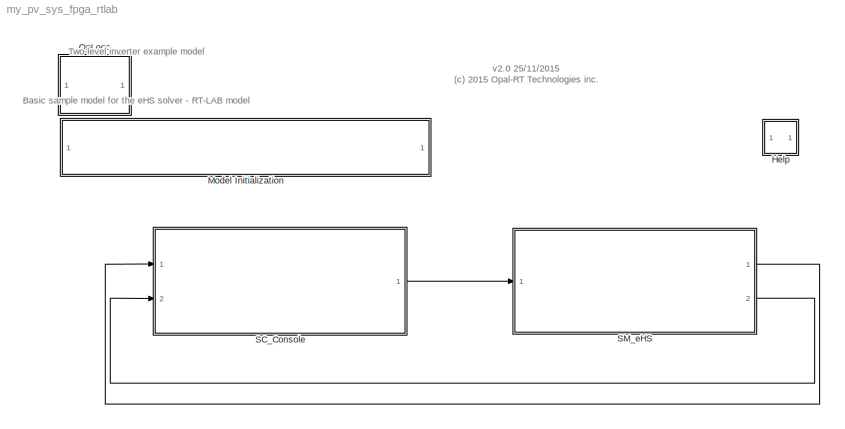
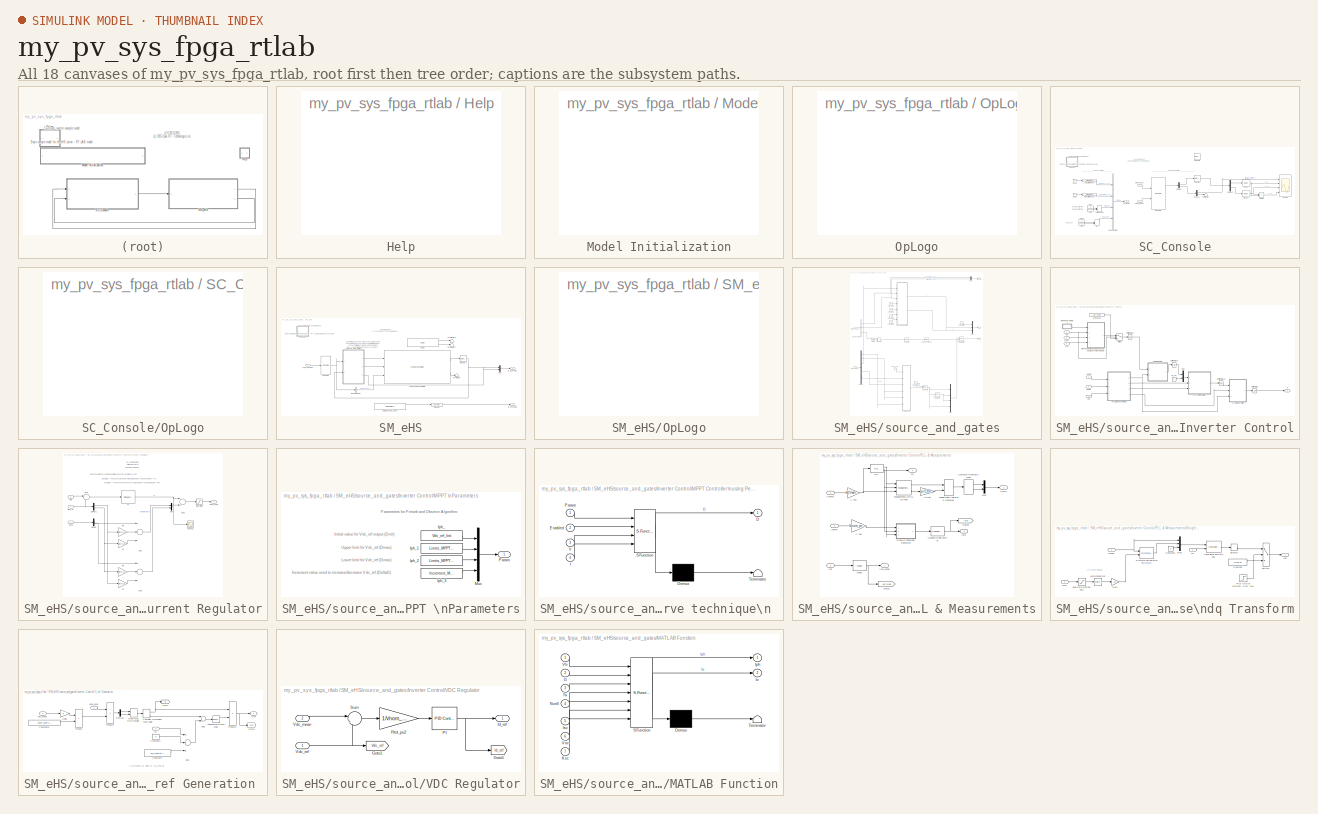
[diagram: thumbnail index - all 18 canvases of the model, root first then tree order]
MODEL my_pv_sys_fpga_rtlab
KIND model
CONFIG InitFcn = Ts = 20e-6;
CONFIG PostLoadFcn = Ts = 20e-6;
BLOCK [SubSystem] Help
  OpenFcn = OpHelp_cb(gcb);
  Ports = []
  RequestExecContextInheritance = off
  SID = 4176
BLOCK [SubSystem] Model Initialization
  CopyFcn = set_param(gcb,'LinkStatus','none')
  Ports = []
  RequestExecContextInheritance = off
  SID = 3978
BLOCK [SubSystem] OpLogo
  Ports = []
  RequestExecContextInheritance = off
  SID = 4164
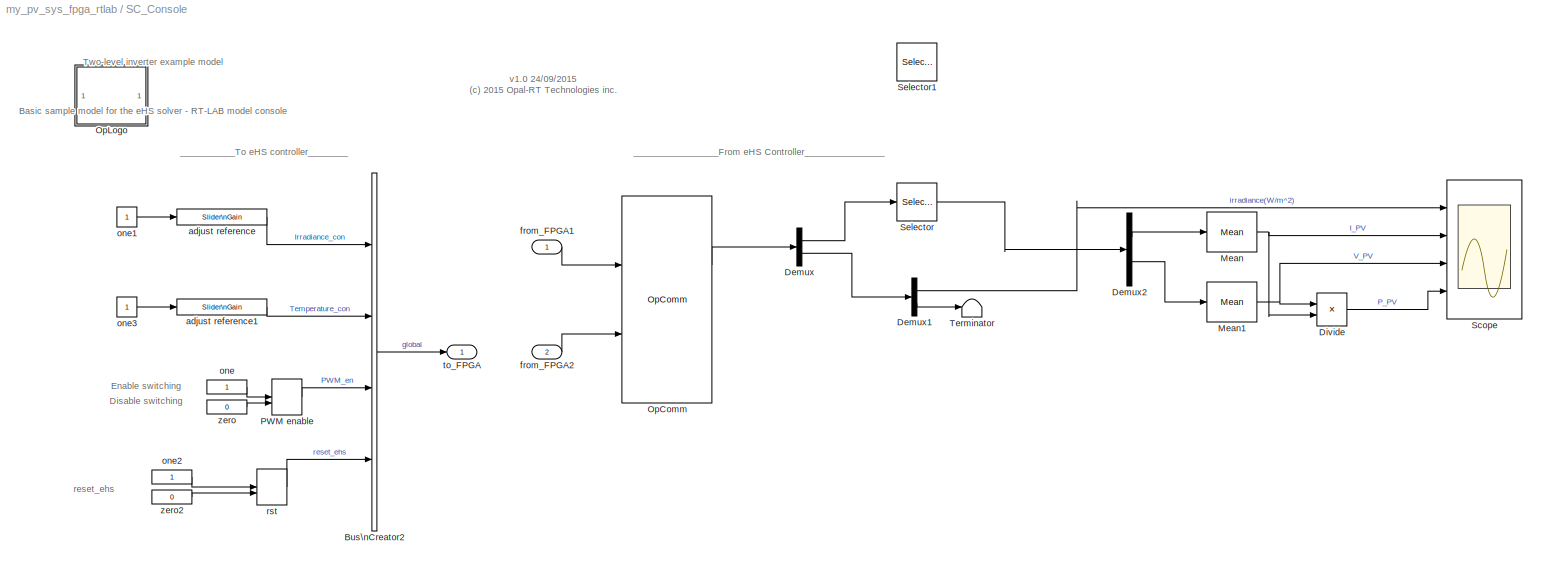
BLOCK [SubSystem] SC_Console
  Ports = [2, 1]
  RequestExecContextInheritance = off
  SID = 5
BLOCK [BusCreator] SC_Console/Bus\nCreator2
  DisplayOption = bar
  Ports = [4, 1]
  SID = 2618
BLOCK [Demux] SC_Console/Demux
  DisplayOption = bar
  Outputs = 2
  Ports = [1, 2]
  SID = 5000
BLOCK [Demux] SC_Console/Demux1
  DisplayOption = bar
  Outputs = 2
  Ports = [1, 2]
  SID = 5001
BLOCK [Demux] SC_Console/Demux2
  DisplayOption = bar
  Outputs = 2
  Ports = [1, 2]
  SID = 5005
BLOCK [Product] SC_Console/Divide
  InputSameDT = off
  Inputs = **
  OutDataTypeStr = Inherit: Inherit via internal rule
  Ports = [2, 1]
  RndMeth = Floor
  SID = 5010
  SaturateOnIntegerOverflow = off
BLOCK [Reference] SC_Console/Mean  REF=powerlib_meascontrol/Measurements/Mean
  Freq = 50
  Ports = [1, 1]
  SID = 5007
  SourceBlock = powerlib_meascontrol/Measurements/Mean
  SourceType = Mean
  Ts = 0
  Vinit = 0
BLOCK [Reference] SC_Console/Mean1  REF=powerlib_meascontrol/Measurements/Mean
  Freq = 50
  Ports = [1, 1]
  SID = 5008
  SourceBlock = powerlib_meascontrol/Measurements/Mean
  SourceType = Mean
  Ts = 0
  Vinit = 0
BLOCK [Reference] SC_Console/OpComm  REF=rtlab/OpComm
  Interpolation = on
  Missed_Data = off
  Offset = off
  Ports = [2, 2]
  SID = 1494
  Samples = off
  Sim_Time = off
  SourceBlock = rtlab/OpComm
  SourceType = RT-LAB OpComm
  Synchronization = off
  Threshold = 1.0
  dynSigOut = off
  from_console = 0
  groupe_acq = 1
  nbport = 2
  st = 0
  subsys_rate = 0
  warning_done = off
  writeOpCommFile = off
BLOCK [SubSystem] SC_Console/OpLogo
  Ports = []
  RequestExecContextInheritance = off
  SID = 4165
BLOCK [ManualSwitch] SC_Console/PWM enable
  SID = 3880
BLOCK [Scope] SC_Console/Scope
  Floating = off
  NumInputPorts = 4
  Ports = [4]
  SID = 5002
  SaveName = ScopeData1
  ShowLegends = off
  YMax = 5~5~5~5
  YMin = -5~-5~-5~-5
BLOCK [Selector] SC_Console/Selector
  Indices = [1 2]
  Ports = [1, 1]
  SID = 3843
BLOCK [Selector] SC_Console/Selector1
  Indices = [1 2]
  Ports = [1, 1]
  SID = 5011
BLOCK [Terminator] SC_Console/Terminator
  SID = 5003
BLOCK [Reference] SC_Console/adjust reference  REF=simulink/Math\nOperations/Slider\nGain
  Ports = [1, 1]
  SID = 4586
  SourceBlock = simulink/Math\nOperations/Slider\nGain
  SourceType = Slider Gain
  gain = 1000
  high = 1000
  low = 0
BLOCK [Reference] SC_Console/adjust reference1  REF=simulink/Math\nOperations/Slider\nGain
  Ports = [1, 1]
  SID = 4587
  SourceBlock = simulink/Math\nOperations/Slider\nGain
  SourceType = Slider Gain
  gain = 25
  high = 60
  low = 0
BLOCK [Inport] SC_Console/from_FPGA1
  IconDisplay = Port number
  SID = 4332
BLOCK [Inport] SC_Console/from_FPGA2
  IconDisplay = Port number
  Port = 2
  SID = 4339
BLOCK [Constant] SC_Console/one
  SID = 3882
BLOCK [Constant] SC_Console/one1
  SID = 4588
BLOCK [Constant] SC_Console/one2
  SID = 4280
BLOCK [Constant] SC_Console/one3
  SID = 4589
BLOCK [ManualSwitch] SC_Console/rst
  CurrentSetting = 0
  SID = 4279
BLOCK [Outport] SC_Console/to_FPGA
  IconDisplay = Port number
  SID = 59
BLOCK [Constant] SC_Console/zero
  SID = 3881
  Value = 0
BLOCK [Constant] SC_Console/zero2
  SID = 4281
  Value = 0
BLOCK [SubSystem] SM_eHS
  Ports = [1, 2]
  RequestExecContextInheritance = off
  SID = 60
BLOCK [BusSelector] SM_eHS/Bus\nSelector
  OutputSignals = reset_ehs
  Ports = [1, 1]
  SID = 4262
BLOCK [Mux] SM_eHS/Mux
  DisplayOption = bar
  Inputs = 2
  Ports = [2, 1]
  SID = 4998
BLOCK [Reference] SM_eHS/OpComm  REF=rtlab/OpComm
  Interpolation = on
  Missed_Data = off
  Offset = off
  Ports = [1, 1]
  SID = 1495
  Samples = off
  Sim_Time = off
  SourceBlock = rtlab/OpComm
  SourceType = RT-LAB OpComm
  Synchronization = on
  Threshold = 1.0
  dynSigOut = off
  from_console = 1
  groupe_acq = 1
  nbport = 1
  st = 0
  subsys_rate = 0
  warning_done = off
  writeOpCommFile = off
BLOCK [Reference] SM_eHS/OpCtrl  REF=rtio_opalrt_common/OpCtrl
  BitstreamFilename = MMPK7_1-EX-0001-2_3_2_19-300Series_eHSgen3_with_IOs-303-03.bin
  BoardType = MMPK7
  CtrlName = 'eHS Ctrl'
  Ports = [0, 2]
  SID = 4344
  SampleTime = 0
  SecondaryPresent = off
  SourceBlock = rtio_opalrt_common/OpCtrl
  SourceType = OpCtrlCommonMask
  boardid = 0
  calibIO = off
  decimRtsi = 0
  externalClock = off
  loadinport = -1
  mode = Master
  numconfig = -1
  sync_type = Audio
BLOCK [SubSystem] SM_eHS/OpLogo
  Ports = []
  RequestExecContextInheritance = off
  SID = 4166
BLOCK [Reference] SM_eHS/Outputs_eHS1_Recv  REF=rtio_opalrt_common/DataOut Recv
  AttributesFormatString = %<CtrlName>
  CtrlName = 'eHS Ctrl'
  FcnNos = 2
  Ports = [0, 2]
  SID = 4562
  SourceBlock = rtio_opalrt_common/DataOut Recv
  SourceType = OpFcnCommonRecv
  checkVersion = off
  expectedId = 0
  expectedVersion = 0
  opComp = >=
  portType = uint32
  sampleTime = 0
  width = 7
BLOCK [Selector] SM_eHS/Selector1
  Indices = [1:7]
  Ports = [1, 1]
  SID = 4330
BLOCK [Terminator] SM_eHS/Terminator
  SID = 4560
BLOCK [Terminator] SM_eHS/Terminator3
  SID = 3967
BLOCK [Terminator] SM_eHS/Terminator7
  SID = 3968
BLOCK [Reference] SM_eHS/eHSx64 Gen3 CommBlk  REF=cpuconverter_lib/eHS Gen3 CommBlk
  AttributesFormatString = %<CtrlName>
  CtrlName = 'eHS Ctrl'
  GateCtrlSelPanel = off
  GenMat = off
  Input_config1_popup = Constant from RT-LAB block (all)
  Polarity1 = zeros(1,72)
  Polarity1_popup = Active-high (all)
  PortNbs = [1 2 1 2:1:2+8 1]
  Ports = [3, 2]
  Pulse_ctrl1 = [zeros(72,1) (0:71)']
  Pulse_ctrl1_popup = From RT-LAB block (all)
  SID = 4559
  SWGPortNbs = 3
  ShowAdv1 = on
  SimeHS1 = off
  SourceBlock = cpuconverter_lib/eHS Gen3 CommBlk
  SourceType = eHS Gen3 solver
  Ts = Ts
  Ts_eHS_1 = 2.5e-07
  Ts_eHS_1_explicit = on
  UseSWG = off
  blkid1 = 0
  circuit_mtx1 = my_pv_sys_fpga
  gs1 = 0.5
  i_init1 = zeros(1,4)
  input_config_1 = [zeros(32,1)  (0:31)']
  input_names = U01\n14,400 V | U02 IPH\n | U03 ID
  input_nb = 3
  input_nb_auto = on
  nb_event = 4
  nb_nsd = 12
  nb_sw = 4
  nb_u = 3
  nb_y = 7
  netlist_name = my_pv_sys_fpga.mdl
  nscn_max = 102
  nscn_used = 1
  output_names = Y01 IPANEL I | Y02 VPANEL U | Y03 VPH U | Y04 VINV U | Y05 IGRID I | Y06 VGRID U | Y07 IG I
  pulse_nb = 8
  rte_pulse_nb = SW01-08
  scn_cmd = do nothing
  scn_en = off
  scn_log_en = on
  solver_size = x64
  static_pulse = none
  switches_names = SW01-04_01 | SW01-04_02 | SW01-04_03 | SW01-04_04
  ts_min = 2.05e-07
  v_init1 = zeros(1,4)
  xls_file = diode_bridge.xls
  xls_page = 1
BLOCK [Inport] SM_eHS/from_Console
  IconDisplay = Port number
  SID = 61
BLOCK [Reference] SM_eHS/sfp2dbl  REF=rtlab/Miscellaneous/Convert \nSingle floating-point (FPGA) \nto double
  Ports = [1, 1]
  SID = 4563
  SourceBlock = rtlab/Miscellaneous/Convert \nSingle floating-point (FPGA) \nto double
  SourceType = Convert Single floating-point (FPGA) to double
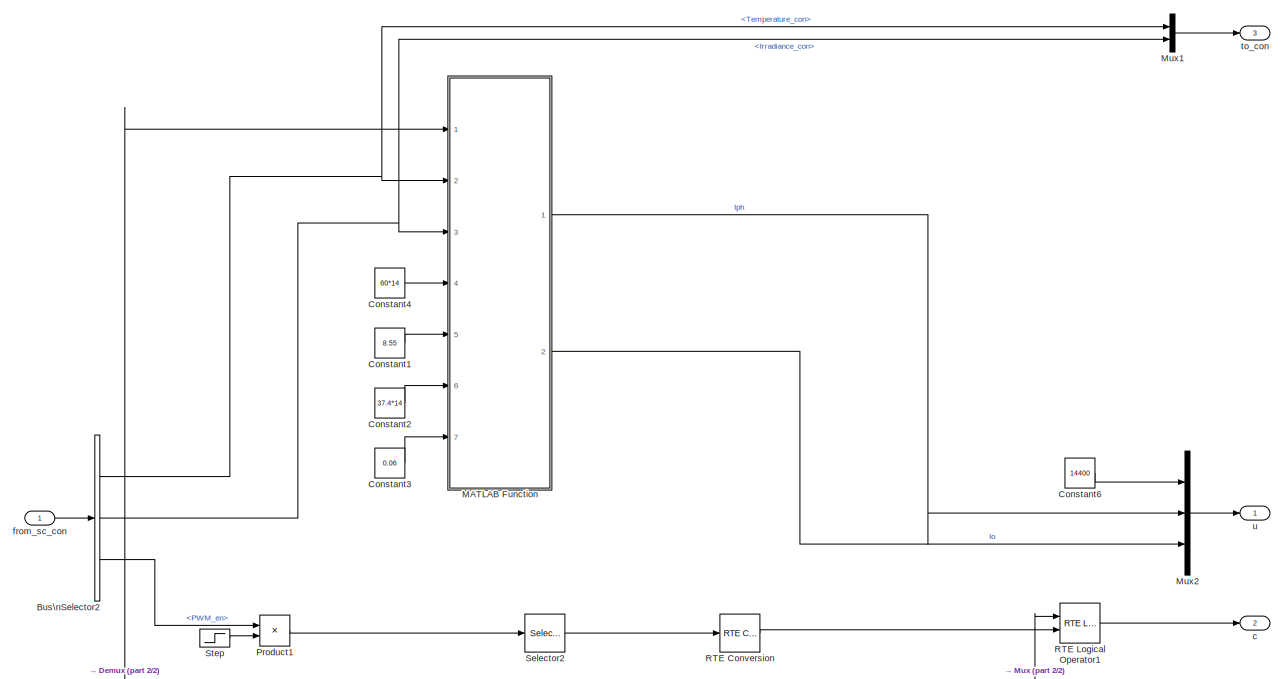
[diagram: SM_eHS/source_and_gates - part 1/2, full width, top band]
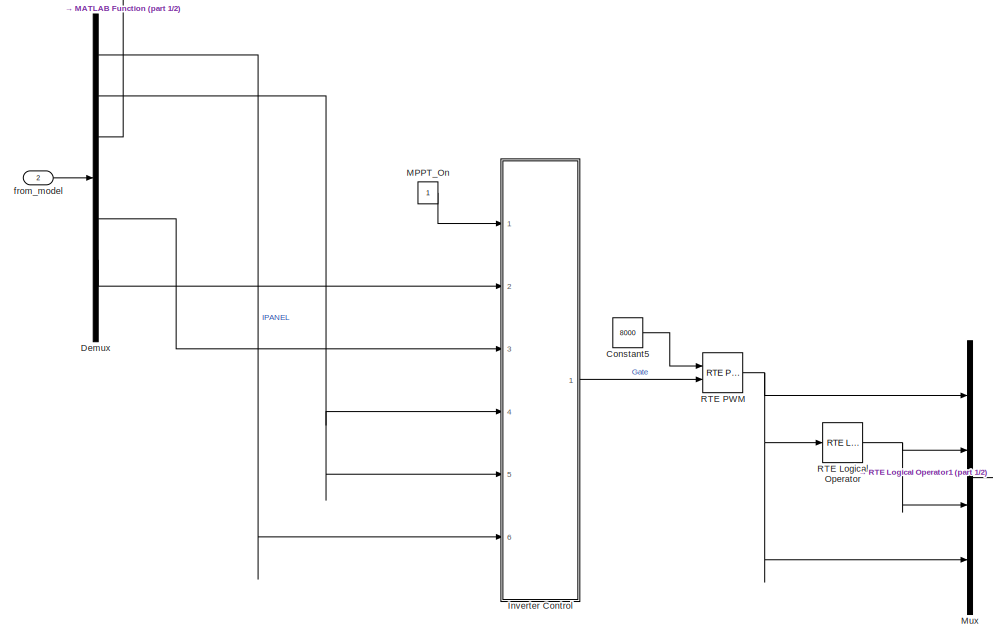
[diagram: SM_eHS/source_and_gates - part 2/2, full width, bottom band]
BLOCK [SubSystem] SM_eHS/source_and_gates
  Ports = [2, 3]
  RequestExecContextInheritance = off
  SID = 4227
BLOCK [BusSelector] SM_eHS/source_and_gates/Bus\nSelector2
  OutputSignals = Temperature_con,Irradiance_con,PWM_en
  Ports = [1, 3]
  SID = 2626
BLOCK [Constant] SM_eHS/source_and_gates/Constant1
  SID = 4722
  Value = 8.55
BLOCK [Constant] SM_eHS/source_and_gates/Constant2
  SID = 4723
  Value = 37.4*14
BLOCK [Constant] SM_eHS/source_and_gates/Constant3
  SID = 4724
  Value = 0.06
BLOCK [Constant] SM_eHS/source_and_gates/Constant4
  SID = 4725
  Value = 60*14
BLOCK [Constant] SM_eHS/source_and_gates/Constant5
  SID = 4991
  Value = 8000
BLOCK [Constant] SM_eHS/source_and_gates/Constant6
  SID = 4995
  Value = 14400
BLOCK [Demux] SM_eHS/source_and_gates/Demux
  DisplayOption = bar
  Outputs = 7
  Ports = [1, 7]
  SID = 4989
BLOCK [SubSystem] SM_eHS/source_and_gates/Inverter Control
  Ports = [6, 1]
  RequestExecContextInheritance = off
  SID = 4726
BLOCK [SubSystem] SM_eHS/source_and_gates/Inverter Control/Current Regulator
  Ports = [3, 1]
  RequestExecContextInheritance = off
  SID = 4733
BLOCK [Sum] SM_eHS/source_and_gates/Inverter Control/Current Regulator/Add1
  InputSameDT = off
  Inputs = ++-
  OutDataTypeStr = Inherit: Inherit via internal rule
  Ports = [3, 1]
  SID = 4737
  SaturateOnIntegerOverflow = off
BLOCK [Sum] SM_eHS/source_and_gates/Inverter Control/Current Regulator/Add2
  InputSameDT = off
  OutDataTypeStr = Inherit: Inherit via internal rule
  Ports = [2, 1]
  SID = 4738
  SaturateOnIntegerOverflow = off
BLOCK [Sum] SM_eHS/source_and_gates/Inverter Control/Current Regulator/Add3
  InputSameDT = off
  Inputs = +++
  OutDataTypeStr = Inherit: Inherit via internal rule
  Ports = [3, 1]
  SID = 4739
  SaturateOnIntegerOverflow = off
BLOCK [Demux] SM_eHS/source_and_gates/Inverter Control/Current Regulator/Demux
  DisplayOption = bar
  Outputs = 2
  Ports = [1, 2]
  SID = 4740
BLOCK [Demux] SM_eHS/source_and_gates/Inverter Control/Current Regulator/Demux1
  DisplayOption = bar
  Outputs = 2
  Ports = [1, 2]
  SID = 4741
BLOCK [Inport] SM_eHS/source_and_gates/Inverter Control/Current Regulator/IdIq
  IconDisplay = Port number
  Port = 3
  PortDimensions = 2
  SID = 4736
BLOCK [Inport] SM_eHS/source_and_gates/Inverter Control/Current Regulator/IdIq_ref
  IconDisplay = Port number
  PortDimensions = 2
  SID = 4734
BLOCK [Gain] SM_eHS/source_and_gates/Inverter Control/Current Regulator/Lff
  Gain = RLff(2)
  SID = 4742
BLOCK [Gain] SM_eHS/source_and_gates/Inverter Control/Current Regulator/Lff  
  Gain = RLff(2)
  SID = 4743
BLOCK [Mux] SM_eHS/source_and_gates/Inverter Control/Current Regulator/Mux
  DisplayOption = bar
  Inputs = 2
  Ports = [2, 1]
  SID = 4744
BLOCK [Reference] SM_eHS/source_and_gates/Inverter Control/Current Regulator/PI  REF=simulink/Continuous/PID Controller
  AntiWindupMode = none
  Controller = PI
  D = 0
  DOutDataTypeStr = Inherit: Inherit via internal rule
  DOutMax = []
  DOutMin = []
  DParamDataTypeStr = Inherit: Inherit via internal rule
  DParamMax = []
  DParamMin = []
  DifferentiatorICPrevScaledInput = 0
  DifferentiatorOutDataTypeStr = Inherit: Inherit via internal rule
  DifferentiatorOutMax = []
  DifferentiatorOutMin = []
  ExternalReset = none
  FilterContinuousStateAttributes = ''
  FilterMethod = Forward Euler
  FilterOutDataTypeStr = Inherit: Inherit via internal rule
  FilterOutMax = []
  FilterOutMin = []
  FilterRTWStateStorageClass = Auto
  FilterStateMustResolveToSignalObject = off
  Form = Parallel
  I = Ki_Ireg
  IOutDataTypeStr = Inherit: Inherit via internal rule
  IOutMax = []
  IOutMin = []
  IParamDataTypeStr = Inherit: Inherit via internal rule
  IParamMax = []
  IParamMin = []
  IgnoreLimit = off
  InitialConditionForFilter = 0
  InitialConditionForIntegrator = 0
  InitialConditionSource = internal
  IntegratorContinuousStateAttributes = ''
  IntegratorMethod = Forward Euler
  IntegratorOutDataTypeStr = Inherit: Inherit via internal rule
  IntegratorOutMax = []
  IntegratorOutMin = []
  IntegratorRTWStateStorageClass = Auto
  IntegratorStateMustResolveToSignalObject = off
  Kb = 1
  KbOutDataTypeStr = Inherit: Inherit via internal rule
  KbOutMax = []
  KbOutMin = []
  KbParamDataTypeStr = Inherit: Inherit via internal rule
  KbParamMax = []
  KbParamMin = []
  Kt = 1
  KtOutDataTypeStr = Inherit: Inherit via internal rule
  KtOutMax = []
  KtOutMin = []
  KtParamDataTypeStr = Inherit: Inherit via internal rule
  KtParamMax = []
  KtParamMin = []
  LimitOutput = on
  LinearizeAsGain = off
  LockScale = off
  LowerSaturationLimit = -1.5
  N = 100
  NOutDataTypeStr = Inherit: Inherit via internal rule
  NOutMax = []
  NOutMin = []
  NParamDataTypeStr = Inherit: Inherit via internal rule
  NParamMax = []
  NParamMin = []
  P = Kp_Ireg
  POutDataTypeStr = Inherit: Inherit via internal rule
  POutMax = []
  POutMin = []
  PParamDataTypeStr = Inherit: Inherit via internal rule
  PParamMax = []
  PParamMin = []
  Ports = [1, 1]
  RndMeth = Floor
  SID = 4745
  SampleTime = Ts_Control
  SaturateOnIntegerOverflow = off
  SaturationOutDataTypeStr = Inherit: Same as input
  SaturationOutMax = []
  SaturationOutMin = []
  SourceBlock = simulink/Continuous/PID Controller
  SourceType = PID 1dof
  SumAccumDataTypeStr = Inherit: Inherit via internal rule
  SumDAccumDataTypeStr = Inherit: Inherit via internal rule
  SumDOutDataTypeStr = Inherit: Inherit via internal rule
  SumDOutMax = []
  SumDOutMin = []
  SumI1AccumDataTypeStr = Inherit: Inherit via internal rule
  SumI1OutDataTypeStr = Inherit: Inherit via internal rule
  SumI1OutMax = []
  SumI1OutMin = []
  SumI2AccumDataTypeStr = Inherit: Inherit via internal rule
  SumI2OutDataTypeStr = Inherit: Inherit via internal rule
  SumI2OutMax = []
  SumI2OutMin = []
  SumI3AccumDataTypeStr = Inherit: Inherit via internal rule
  SumI3OutDataTypeStr = Inherit: Inherit via internal rule
  SumI3OutMax = []
  SumI3OutMin = []
  SumOutDataTypeStr = Inherit: Inherit via internal rule
  SumOutMax = []
  SumOutMin = []
  TimeDomain = Discrete-time
  TrackingMode = off
  UpperSaturationLimit = 1.5
  UseFilter = on
  ZeroCross = on
BLOCK [Scope] SM_eHS/source_and_gates/Inverter Control/Current Regulator/PI_Ireg1
  Floating = off
  LimitDataPoints = off
  NumInputPorts = 1
  Ports = [1]
  SID = 4746
  ShowLegends = off
  YMax = 0.45
  YMin = -0.25
BLOCK [Gain] SM_eHS/source_and_gates/Inverter Control/Current Regulator/Rff
  Gain = RLff(1)
  SID = 4747
BLOCK [Gain] SM_eHS/source_and_gates/Inverter Control/Current Regulator/Rff 
  Gain = RLff(1)
  SID = 4748
BLOCK [Saturate] SM_eHS/source_and_gates/Inverter Control/Current Regulator/Saturation
  InputPortMap = u0
  LowerLimit = -1.5
  Ports = [1, 1]
  SID = 4749
  UpperLimit = 1.5
BLOCK [Sum] SM_eHS/source_and_gates/Inverter Control/Current Regulator/Sum
  IconShape = round
  InputSameDT = off
  Inputs = |-+
  OutDataTypeStr = Inherit: Inherit via internal rule
  Ports = [2, 1]
  SID = 4750
  SaturateOnIntegerOverflow = off
BLOCK [Inport] SM_eHS/source_and_gates/Inverter Control/Current Regulator/VdVq
  IconDisplay = Port number
  Port = 2
  PortDimensions = 2
  SID = 4735
BLOCK [Outport] SM_eHS/source_and_gates/Inverter Control/Current Regulator/VdVq_conv
  IconDisplay = Port number
  SID = 4751
BLOCK [Inport] SM_eHS/source_and_gates/Inverter Control/I_PV
  IconDisplay = Port number
  Port = 6
  PortDimensions = 1
  SID = 4732
BLOCK [Inport] SM_eHS/source_and_gates/Inverter Control/Ihome
  IconDisplay = Port number
  Port = 3
  PortDimensions = 1
  SID = 4729
BLOCK [Constant] SM_eHS/source_and_gates/Inverter Control/Iq_ref
  SID = 4757
  Value = 0
BLOCK [SubSystem] SM_eHS/source_and_gates/Inverter Control/MPPT Controller\nusing Perturbe \n& Observe technique\n 
  ErrorFcn = Stateflow.Translate.translate
  PermitHierarchicalResolution = ExplicitOnly
  Ports = [4, 1]
  RequestExecContextInheritance = off
  SFBlockType = MATLAB Function
  SID = 4770
  TreatAsAtomicUnit = on
BLOCK [Demux] SM_eHS/source_and_gates/Inverter Control/MPPT Controller\nusing Perturbe \n& Observe technique\n / Demux 
  Outputs = 1
  Ports = [1, 1]
  SID = 4770::127
BLOCK [S-Function] SM_eHS/source_and_gates/Inverter Control/MPPT Controller\nusing Perturbe \n& Observe technique\n / SFunction 
  EnableBusSupport = on
  FunctionName = sf_sfun
  PortCounts = [4 2]
  Ports = [4, 2]
  SID = 4770::126
  Tag = Stateflow S-Function my_pv_sys_fpga_rtlab 2
BLOCK [Terminator] SM_eHS/source_and_gates/Inverter Control/MPPT Controller\nusing Perturbe \n& Observe technique\n / Terminator 
  SID = 4770::128
BLOCK [Outport] SM_eHS/source_and_gates/Inverter Control/MPPT Controller\nusing Perturbe \n& Observe technique\n /D
  IconDisplay = Port number
  SID = 4770::35
BLOCK [Inport] SM_eHS/source_and_gates/Inverter Control/MPPT Controller\nusing Perturbe \n& Observe technique\n /Enabled
  IconDisplay = Port number
  Port = 2
  SID = 4770::91
BLOCK [Inport] SM_eHS/source_and_gates/Inverter Control/MPPT Controller\nusing Perturbe \n& Observe technique\n /I
  IconDisplay = Port number
  Port = 4
  SID = 4770::1
BLOCK [Inport] SM_eHS/source_and_gates/Inverter Control/MPPT Controller\nusing Perturbe \n& Observe technique\n /Param
  IconDisplay = Port number
  SID = 4770::90
BLOCK [Inport] SM_eHS/source_and_gates/Inverter Control/MPPT Controller\nusing Perturbe \n& Observe technique\n /V
  IconDisplay = Port number
  Port = 3
  SID = 4770::85
BLOCK [SubSystem] SM_eHS/source_and_gates/Inverter Control/MPPT \nParameters
  Ports = [0, 1]
  RequestExecContextInheritance = off
  SID = 4758
BLOCK [Constant] SM_eHS/source_and_gates/Inverter Control/MPPT \nParameters/Iph_
  SID = 4759
  Value = Vdc_ref_Init
BLOCK [Constant] SM_eHS/source_and_gates/Inverter Control/MPPT \nParameters/Iph_1
  SID = 4760
  Value = Limits_MPPT(1)
BLOCK [Constant] SM_eHS/source_and_gates/Inverter Control/MPPT \nParameters/Iph_2
  SID = 4761
  Value = Limits_MPPT(2)
BLOCK [Constant] SM_eHS/source_and_gates/Inverter Control/MPPT \nParameters/Iph_3
  SID = 4762
  Value = Increment_MPPT
BLOCK [Mux] SM_eHS/source_and_gates/Inverter Control/MPPT \nParameters/Mux
  DisplayOption = bar
  Ports = [4, 1]
  SID = 4763
BLOCK [Outport] SM_eHS/source_and_gates/Inverter Control/MPPT \nParameters/Param
  IconDisplay = Port number
  SID = 4764
BLOCK [Mux] SM_eHS/source_and_gates/Inverter Control/Mux
  DisplayOption = bar
  Inputs = 2
  Ports = [2, 1]
  SID = 4771
BLOCK [Inport] SM_eHS/source_and_gates/Inverter Control/On
  IconDisplay = Port number
  PortDimensions = 1
  SID = 4727
BLOCK [SubSystem] SM_eHS/source_and_gates/Inverter Control/PLL & Measurements
  Ports = [3, 4]
  RequestExecContextInheritance = off
  SID = 4772
BLOCK [Gain] SM_eHS/source_and_gates/Inverter Control/PLL & Measurements/A->pu
  Gain = Vnom_prim/Pnom/sqrt(2)
  SID = 4776
BLOCK [ComplexToRealImag] SM_eHS/source_and_gates/Inverter Control/PLL & Measurements/Complex to\nReal-Imag
  Ports = [1, 2]
  SID = 4777
BLOCK [Reference] SM_eHS/source_and_gates/Inverter Control/PLL & Measurements/Fundamental\n(PLL-Driven)  REF=powerlib_meascontrol/Measurements/Fundamental\n(PLL-Driven)
  Finit = Fnom
  Fmin = 45
  InInit = [1, 0]
  Ports = [3, 2]
  SID = 4778
  SourceBlock = powerlib_meascontrol/Measurements/Fundamental\n(PLL-Driven)
  SourceType = Fundamental (PLL-Driven)
  Ts = Ts_Control
BLOCK [Goto] SM_eHS/source_and_gates/Inverter Control/PLL & Measurements/Goto1
  GotoTag = Vdc_mean
  SID = 4779
  TagVisibility = global
BLOCK [Goto] SM_eHS/source_and_gates/Inverter Control/PLL & Measurements/Goto3
  GotoTag = IdIq
  SID = 4780
  TagVisibility = global
BLOCK [Outport] SM_eHS/source_and_gates/Inverter Control/PLL & Measurements/IdIq
  IconDisplay = Port number
  Port = 3
  SID = 4807
BLOCK [Inport] SM_eHS/source_and_gates/Inverter Control/PLL & Measurements/Ihome
  IconDisplay = Port number
  Port = 2
  SID = 4774
BLOCK [MagnitudeAngleToComplex] SM_eHS/source_and_gates/Inverter Control/PLL & Measurements/Magnitude-Angle\nto Complex
  Ports = [2, 1]
  SID = 4781
BLOCK [Reference] SM_eHS/source_and_gates/Inverter Control/PLL & Measurements/Mean  REF=powerlib_meascontrol/Measurements/Mean
  Freq = Fnom
  Ports = [1, 1]
  SID = 4782
  SourceBlock = powerlib_meascontrol/Measurements/Mean
  SourceType = Mean
  Ts = Ts_Control
  Vinit = Vdc_ref_Init
BLOCK [Mux] SM_eHS/source_and_gates/Inverter Control/PLL & Measurements/Mux
  DisplayOption = bar
  Inputs = 2
  Ports = [2, 1]
  SID = 4783
BLOCK [Reference] SM_eHS/source_and_gates/Inverter Control/PLL & Measurements/PLL  REF=powerlib_meascontrol/PLL/PLL
  AGC = on
  FilterCutOffFreq = 25
  Fmin = 40
  MaxRateChangeFreq = 12
  ParK = [180, 3200, 1]
  Par_Init = [0, Fnom]
  Ports = [1, 2]
  SID = 4784
  SourceBlock = powerlib_meascontrol/PLL/PLL
  SourceType = PLL
  TcD = 1e-4
  Ts = Ts_Control
BLOCK [Reference] SM_eHS/source_and_gates/Inverter Control/PLL & Measurements/Second-Order\nFilter  REF=powerlib_meascontrol/Filters/Second-Order\nFilter
  FilterType = Lowpass
  Fo = 2000
  FreqRange = [0, 500, 1]
  Initialize = on
  PlotResponse = off
  Ports = [1, 1]
  SID = 4785
  SourceBlock = powerlib_meascontrol/Filters/Second-Order\nFilter
  SourceType = Second-Order Filter
  Ts = Ts_Control
  Vac_Init = [0,  0,  60;0,0,60]
  Vdc_Init = [0.9 0]
  Zeta = 1
BLOCK [SubSystem] SM_eHS/source_and_gates/Inverter Control/PLL & Measurements/Single-Phase\ndq Transform
  Ports = [3, 1]
  RequestExecContextInheritance = off
  SID = 4786
BLOCK [Reference] SM_eHS/source_and_gates/Inverter Control/PLL & Measurements/Single-Phase\ndq Transform/Alpha-Beta-Zero\nto dq0  REF=powerlib_meascontrol/Transformations/Alpha-Beta-Zero\nto dq0
  Alignment = 90 degrees behind phase A axis
  Ports = [2, 1]
  SID = 4790
  SourceBlock = powerlib_meascontrol/Transformations/Alpha-Beta-Zero\nto dq0
  SourceType = Alpha-Beta-Zero to dq0 Transformation
BLOCK [Constant] SM_eHS/source_and_gates/Inverter Control/PLL & Measurements/Single-Phase\ndq Transform/Constant
  SID = 4791
  Value = [0.92 0]
BLOCK [Constant] SM_eHS/source_and_gates/Inverter Control/PLL & Measurements/Single-Phase\ndq Transform/Constant1
  SID = 4792
  Value = 0
BLOCK [Reference] SM_eHS/source_and_gates/Inverter Control/PLL & Measurements/Single-Phase\ndq Transform/Discrete Variable\nTime Delay  REF=powerlib_meascontrol/Additional Components/Discrete Variable\nTime Delay
  DFT = on
  InitialValue = 0
  MaxDelay = 1
  Ports = [2, 1]
  SID = 4793
  SourceBlock = powerlib_meascontrol/Additional Components/Discrete Variable\nTime Delay
  SourceType = Discrete Variable Time Delay
  Ts = Ts_Control
BLOCK [Step] SM_eHS/source_and_gates/Inverter Control/PLL & Measurements/Single-Phase\ndq Transform/First cycle of simulation\nId=0.92, Iq=0
  SID = 4794
  SampleTime = Ts_Control
  Time = 1/Fnom
BLOCK [Inport] SM_eHS/source_and_gates/Inverter Control/PLL & Measurements/Single-Phase\ndq Transform/Freq
  IconDisplay = Port number
  Port = 3
  SID = 4789
BLOCK [Gain] SM_eHS/source_and_gates/Inverter Control/PLL & Measurements/Single-Phase\ndq Transform/Gain
  Gain = 1/4
  OutDataTypeStr = Inherit: Inherit via internal rule
  ParamDataTypeStr = Inherit: Inherit via internal rule
  SID = 4795
  SaturateOnIntegerOverflow = off
BLOCK [Outport] SM_eHS/source_and_gates/Inverter Control/PLL & Measurements/Single-Phase\ndq Transform/Idq
  IconDisplay = Port number
  SID = 4801
BLOCK [Inport] SM_eHS/source_and_gates/Inverter Control/PLL & Measurements/Single-Phase\ndq Transform/Imeas
  IconDisplay = Port number
  SID = 4787
BLOCK [Math] SM_eHS/source_and_gates/Inverter Control/PLL & Measurements/Single-Phase\ndq Transform/Math\nFunction
  Operator = reciprocal
  Ports = [1, 1]
  SID = 4796
BLOCK [Mux] SM_eHS/source_and_gates/Inverter Control/PLL & Measurements/Single-Phase\ndq Transform/Mux1
  DisplayOption = bar
  Inputs = 3
  Ports = [3, 1]
  SID = 4797
BLOCK [Selector] SM_eHS/source_and_gates/Inverter Control/PLL & Measurements/Single-Phase\ndq Transform/Selector
  Indices = [1 2]
  InputPortWidth = 3
  Ports = [1, 1]
  SID = 4798
BLOCK [Switch] SM_eHS/source_and_gates/Inverter Control/PLL & Measurements/Single-Phase\ndq Transform/Switch
  Criteria = u2 ~= 0
  InputSameDT = off
  SID = 4799
  SaturateOnIntegerOverflow = off
BLOCK [Saturate] SM_eHS/source_and_gates/Inverter Control/PLL & Measurements/Single-Phase\ndq Transform/avoid division\nby zero
  InputPortMap = u0
  LowerLimit = 40
  Ports = [1, 1]
  SID = 4800
  UpperLimit = 70
BLOCK [Inport] SM_eHS/source_and_gates/Inverter Control/PLL & Measurements/Single-Phase\ndq Transform/wt
  IconDisplay = Port number
  Port = 2
  SID = 4788
BLOCK [Gain] SM_eHS/source_and_gates/Inverter Control/PLL & Measurements/V->pu
  Gain = 1/(Vnom_prim*sqrt(2))
  SID = 4803
BLOCK [Outport] SM_eHS/source_and_gates/Inverter Control/PLL & Measurements/VdVq
  IconDisplay = Port number
  Port = 2
  SID = 4806
BLOCK [Inport] SM_eHS/source_and_gates/Inverter Control/PLL & Measurements/Vdc
  IconDisplay = Port number
  Port = 3
  SID = 4775
BLOCK [Outport] SM_eHS/source_and_gates/Inverter Control/PLL & Measurements/Vdc_mean
  IconDisplay = Port number
  SID = 4805
BLOCK [Inport] SM_eHS/source_and_gates/Inverter Control/PLL & Measurements/Vhome
  IconDisplay = Port number
  SID = 4773
BLOCK [Gain] SM_eHS/source_and_gates/Inverter Control/PLL & Measurements/to-rad
  Gain = pi/180
  OutDataTypeStr = Inherit: Inherit via internal rule
  ParamDataTypeStr = Inherit: Inherit via internal rule
  SID = 4804
  SaturateOnIntegerOverflow = off
BLOCK [Outport] SM_eHS/source_and_gates/Inverter Control/PLL & Measurements/wt
  IconDisplay = Port number
  Port = 4
  SID = 4808
BLOCK [Switch] SM_eHS/source_and_gates/Inverter Control/Switch
  Criteria = u2 ~= 0
  InputSameDT = off
  SID = 4810
  SaturateOnIntegerOverflow = off
BLOCK [SubSystem] SM_eHS/source_and_gates/Inverter Control/U_ref Generation 
  Ports = [3, 1]
  RequestExecContextInheritance = off
  SID = 4811
BLOCK [Sum] SM_eHS/source_and_gates/Inverter Control/U_ref Generation /Add1
  InputSameDT = off
  Inputs = +++
  OutDataTypeStr = Inherit: Inherit via internal rule
  Ports = [3, 1]
  SID = 4815
  SaturateOnIntegerOverflow = off
BLOCK [Sum] SM_eHS/source_and_gates/Inverter Control/U_ref Generation /Add2
  InputSameDT = off
  OutDataTypeStr = Inherit: Inherit via internal rule
  Ports = [2, 1]
  SID = 4816
  SaturateOnIntegerOverflow = off
BLOCK [ComplexToMagnitudeAngle] SM_eHS/source_and_gates/Inverter Control/U_ref Generation /Complex to\nMagnitude-Angle
  Ports = [1, 2]
  SID = 4817
BLOCK [Constant] SM_eHS/source_and_gates/Inverter Control/U_ref Generation /Constant2
  SID = 4818
  Value = 0
BLOCK [Constant] SM_eHS/source_and_gates/Inverter Control/U_ref Generation /Constant3
  SID = 4819
  Value = Vnom_prim*sqrt(2)
BLOCK [Constant] SM_eHS/source_and_gates/Inverter Control/U_ref Generation /Constant4
  SID = 4820
  Value = Ts_Control*Fnom*(2*pi)
BLOCK [Demux] SM_eHS/source_and_gates/Inverter Control/U_ref Generation /Demux1
  DisplayOption = bar
  Outputs = 2
  Ports = [1, 2]
  SID = 4821
BLOCK [Gain] SM_eHS/source_and_gates/Inverter Control/U_ref Generation /Gain1
  OutDataTypeStr = Inherit: Inherit via internal rule
  ParamDataTypeStr = Inherit: Inherit via internal rule
  SID = 4822
  SaturateOnIntegerOverflow = off
BLOCK [Goto] SM_eHS/source_and_gates/Inverter Control/U_ref Generation /Goto1
  GotoTag = m
  SID = 4823
  TagVisibility = global
BLOCK [Goto] SM_eHS/source_and_gates/Inverter Control/U_ref Generation /Goto2
  GotoTag = Uref
  SID = 4824
  TagVisibility = global
BLOCK [Product] SM_eHS/source_and_gates/Inverter Control/U_ref Generation /Product
  InputSameDT = off
  Inputs = */
  OutDataTypeStr = Inherit: Inherit via internal rule
  Ports = [2, 1]
  SID = 4825
  SaturateOnIntegerOverflow = off
BLOCK [Product] SM_eHS/source_and_gates/Inverter Control/U_ref Generation /Product1
  InputSameDT = off
  Inputs = */
  OutDataTypeStr = Inherit: Inherit via internal rule
  Ports = [2, 1]
  SID = 4826
  SaturateOnIntegerOverflow = off
BLOCK [Product] SM_eHS/source_and_gates/Inverter Control/U_ref Generation /Product2
  InputSameDT = off
  Inputs = **
  OutDataTypeStr = Inherit: Inherit via internal rule
  Ports = [2, 1]
  SID = 4827
  SaturateOnIntegerOverflow = off
BLOCK [RealImagToComplex] SM_eHS/source_and_gates/Inverter Control/U_ref Generation /Real-Imag to\nComplex
  Ports = [2, 1]
  SID = 4828
BLOCK [Trigonometry] SM_eHS/source_and_gates/Inverter Control/U_ref Generation /Trigonometric\nFunction
  Ports = [1, 1]
  SID = 4829
BLOCK [Outport] SM_eHS/source_and_gates/Inverter Control/U_ref Generation /Uref
  IconDisplay = Port number
  SID = 4830
BLOCK [Inport] SM_eHS/source_and_gates/Inverter Control/U_ref Generation /VdVq_conv
  IconDisplay = Port number
  SID = 4812
BLOCK [Inport] SM_eHS/source_and_gates/Inverter Control/U_ref Generation /Vdc_mean
  IconDisplay = Port number
  Port = 3
  SID = 4814
BLOCK [Inport] SM_eHS/source_and_gates/Inverter Control/U_ref Generation /wt
  IconDisplay = Port number
  Port = 2
  SID = 4813
BLOCK [UnitDelay] SM_eHS/source_and_gates/Inverter Control/Unit\nDelay
  InitialCondition = 0.1684
  InputProcessing = Elements as channels (sample based)
  SID = 4832
  SampleTime = Ts_Control
BLOCK [UnitDelay] SM_eHS/source_and_gates/Inverter Control/Unit\nDelay1
  InputProcessing = Elements as channels (sample based)
  SID = 4833
  SampleTime = Ts_Control
BLOCK [UnitDelay] SM_eHS/source_and_gates/Inverter Control/Unit\nDelay2
  InputProcessing = Elements as channels (sample based)
  SID = 4834
  SampleTime = Ts_Control
BLOCK [UnitDelay] SM_eHS/source_and_gates/Inverter Control/Unit\nDelay3
  InputProcessing = Elements as channels (sample based)
  SID = 4835
  SampleTime = Ts_Control
BLOCK [SubSystem] SM_eHS/source_and_gates/Inverter Control/VDC Regulator
  Ports = [2, 1]
  RequestExecContextInheritance = off
  SID = 4836
BLOCK [Goto] SM_eHS/source_and_gates/Inverter Control/VDC Regulator/Goto1
  GotoTag = Vdc_ref
  SID = 4839
  TagVisibility = global
BLOCK [Goto] SM_eHS/source_and_gates/Inverter Control/VDC Regulator/Goto5
  GotoTag = Id_ref
  SID = 4840
  TagVisibility = global
BLOCK [Outport] SM_eHS/source_and_gates/Inverter Control/VDC Regulator/Id_ref
  IconDisplay = Port number
  InitialOutput = 0
  SID = 4844
BLOCK [Reference] SM_eHS/source_and_gates/Inverter Control/VDC Regulator/PI  REF=simulink/Continuous/PID Controller
  AntiWindupMode = none
  Controller = PI
  D = 0
  DOutDataTypeStr = Inherit: Inherit via internal rule
  DOutMax = []
  DOutMin = []
  DParamDataTypeStr = Inherit: Inherit via internal rule
  DParamMax = []
  DParamMin = []
  DifferentiatorICPrevScaledInput = 0
  DifferentiatorOutDataTypeStr = Inherit: Inherit via internal rule
  DifferentiatorOutMax = []
  DifferentiatorOutMin = []
  ExternalReset = none
  FilterContinuousStateAttributes = ''
  FilterMethod = Forward Euler
  FilterOutDataTypeStr = Inherit: Inherit via internal rule
  FilterOutMax = []
  FilterOutMin = []
  FilterRTWStateStorageClass = Auto
  FilterStateMustResolveToSignalObject = off
  Form = Parallel
  I = Ki_VDCreg
  IOutDataTypeStr = Inherit: Inherit via internal rule
  IOutMax = []
  IOutMin = []
  IParamDataTypeStr = Inherit: Inherit via internal rule
  IParamMax = []
  IParamMin = []
  IgnoreLimit = off
  InitialConditionForFilter = 0
  InitialConditionForIntegrator = 0.9226
  InitialConditionSource = internal
  IntegratorContinuousStateAttributes = ''
  IntegratorMethod = Trapezoidal
  IntegratorOutDataTypeStr = Inherit: Inherit via internal rule
  IntegratorOutMax = []
  IntegratorOutMin = []
  IntegratorRTWStateStorageClass = Auto
  IntegratorStateMustResolveToSignalObject = off
  Kb = 1
  KbOutDataTypeStr = Inherit: Inherit via internal rule
  KbOutMax = []
  KbOutMin = []
  KbParamDataTypeStr = Inherit: Inherit via internal rule
  KbParamMax = []
  KbParamMin = []
  Kt = 1
  KtOutDataTypeStr = Inherit: Inherit via internal rule
  KtOutMax = []
  KtOutMin = []
  KtParamDataTypeStr = Inherit: Inherit via internal rule
  KtParamMax = []
  KtParamMin = []
  LimitOutput = on
  LinearizeAsGain = off
  LockScale = off
  LowerSaturationLimit = -1.5
  N = 100
  NOutDataTypeStr = Inherit: Inherit via internal rule
  NOutMax = []
  NOutMin = []
  NParamDataTypeStr = Inherit: Inherit via internal rule
  NParamMax = []
  NParamMin = []
  P = Kp_VDCreg
  POutDataTypeStr = Inherit: Inherit via internal rule
  POutMax = []
  POutMin = []
  PParamDataTypeStr = Inherit: Inherit via internal rule
  PParamMax = []
  PParamMin = []
  Ports = [1, 1]
  RndMeth = Floor
  SID = 4841
  SampleTime = Ts_Control
  SaturateOnIntegerOverflow = off
  SaturationOutDataTypeStr = Inherit: Same as input
  SaturationOutMax = []
  SaturationOutMin = []
  SourceBlock = simulink/Continuous/PID Controller
  SourceType = PID 1dof
  SumAccumDataTypeStr = Inherit: Inherit via internal rule
  SumDAccumDataTypeStr = Inherit: Inherit via internal rule
  SumDOutDataTypeStr = Inherit: Inherit via internal rule
  SumDOutMax = []
  SumDOutMin = []
  SumI1AccumDataTypeStr = Inherit: Inherit via internal rule
  SumI1OutDataTypeStr = Inherit: Inherit via internal rule
  SumI1OutMax = []
  SumI1OutMin = []
  SumI2AccumDataTypeStr = Inherit: Inherit via internal rule
  SumI2OutDataTypeStr = Inherit: Inherit via internal rule
  SumI2OutMax = []
  SumI2OutMin = []
  SumI3AccumDataTypeStr = Inherit: Inherit via internal rule
  SumI3OutDataTypeStr = Inherit: Inherit via internal rule
  SumI3OutMax = []
  SumI3OutMin = []
  SumOutDataTypeStr = Inherit: Inherit via internal rule
  SumOutMax = []
  SumOutMin = []
  TimeDomain = Discrete-time
  TrackingMode = off
  UpperSaturationLimit = 1.5
  UseFilter = on
  ZeroCross = on
BLOCK [Gain] SM_eHS/source_and_gates/Inverter Control/VDC Regulator/Rtot_pu2
  Gain = 1/Vnom_dc
  SID = 4842
BLOCK [Sum] SM_eHS/source_and_gates/Inverter Control/VDC Regulator/Sum
  IconShape = round
  InputSameDT = off
  Inputs = |+-
  OutDataTypeStr = Inherit: Inherit via internal rule
  Ports = [2, 1]
  SID = 4843
  SaturateOnIntegerOverflow = off
BLOCK [Inport] SM_eHS/source_and_gates/Inverter Control/VDC Regulator/Vdc_mean
  IconDisplay = Port number
  Port = 2
  PortDimensions = 1
  SID = 4838
BLOCK [Inport] SM_eHS/source_and_gates/Inverter Control/VDC Regulator/Vdc_ref
  IconDisplay = Port number
  PortDimensions = 1
  SID = 4837
BLOCK [Inport] SM_eHS/source_and_gates/Inverter Control/V_PV
  IconDisplay = Port number
  Port = 5
  PortDimensions = 1
  SID = 4731
BLOCK [Inport] SM_eHS/source_and_gates/Inverter Control/Vdc
  IconDisplay = Port number
  Port = 4
  PortDimensions = 1
  SID = 4730
BLOCK [Inport] SM_eHS/source_and_gates/Inverter Control/Vhome
  IconDisplay = Port number
  Port = 2
  PortDimensions = 1
  SID = 4728
BLOCK [Constant] SM_eHS/source_and_gates/Inverter Control/Vnom_dc1
  SID = 4845
  Value = Vdc_ref_Init
BLOCK [Outport] SM_eHS/source_and_gates/Inverter Control/g
  IconDisplay = Port number
  SID = 4846
BLOCK [SubSystem] SM_eHS/source_and_gates/MATLAB Function
  ErrorFcn = Stateflow.Translate.translate
  PermitHierarchicalResolution = ExplicitOnly
  Ports = [7, 2]
  RequestExecContextInheritance = off
  SFBlockType = MATLAB Function
  SID = 4847
  TreatAsAtomicUnit = on
BLOCK [Demux] SM_eHS/source_and_gates/MATLAB Function/ Demux 
  Outputs = 1
  Ports = [1, 1]
  SID = 4847::17
BLOCK [S-Function] SM_eHS/source_and_gates/MATLAB Function/ SFunction 
  EnableBusSupport = on
  FunctionName = sf_sfun
  PortCounts = [7 3]
  Ports = [7, 3]
  SID = 4847::16
  Tag = Stateflow S-Function my_pv_sys_fpga_rtlab 1
BLOCK [Terminator] SM_eHS/source_and_gates/MATLAB Function/ Terminator 
  SID = 4847::18
BLOCK [Inport] SM_eHS/source_and_gates/MATLAB Function/G
  IconDisplay = Port number
  Port = 2
  SID = 4847::19
BLOCK [Outport] SM_eHS/source_and_gates/MATLAB Function/Io
  IconDisplay = Port number
  Port = 2
  SID = 4847::28
BLOCK [Outport] SM_eHS/source_and_gates/MATLAB Function/Iph
  IconDisplay = Port number
  SID = 4847::5
BLOCK [Inport] SM_eHS/source_and_gates/MATLAB Function/Isc
  IconDisplay = Port number
  Port = 5
  SID = 4847::22
BLOCK [Inport] SM_eHS/source_and_gates/MATLAB Function/Ksc
  IconDisplay = Port number
  Port = 7
  SID = 4847::24
BLOCK [Inport] SM_eHS/source_and_gates/MATLAB Function/Ncell
  IconDisplay = Port number
  Port = 4
  SID = 4847::21
BLOCK [Inport] SM_eHS/source_and_gates/MATLAB Function/Ta
  IconDisplay = Port number
  Port = 3
  SID = 4847::20
BLOCK [Inport] SM_eHS/source_and_gates/MATLAB Function/Vb
  IconDisplay = Port number
  SID = 4847::29
BLOCK [Inport] SM_eHS/source_and_gates/MATLAB Function/Voc
  IconDisplay = Port number
  Port = 6
  SID = 4847::23
BLOCK [Constant] SM_eHS/source_and_gates/MPPT_On
  SID = 4848
BLOCK [Mux] SM_eHS/source_and_gates/Mux
  DisplayOption = bar
  Ports = [4, 1]
  SID = 4994
BLOCK [Mux] SM_eHS/source_and_gates/Mux1
  DisplayOption = bar
  Inputs = 2
  Ports = [2, 1]
  SID = 4997
BLOCK [Mux] SM_eHS/source_and_gates/Mux2
  DisplayOption = bar
  Inputs = 3
  Ports = [3, 1]
  SID = 3876
BLOCK [Product] SM_eHS/source_and_gates/Product1
  InputSameDT = off
  OutDataTypeStr = Inherit: Inherit via internal rule
  Ports = [2, 1]
  SID = 4161
  SaturateOnIntegerOverflow = off
BLOCK [Reference] SM_eHS/source_and_gates/RTE Conversion  REF=rteventslib/Signal\nAttributes/RTE Conversion
  Ports = [1, 1]
  SID = 4103
  SourceBlock = rteventslib/Signal\nAttributes/RTE Conversion
  SourceType = RTE Conversion
  compensation = Enabled
  inputdatatype = Double
  nbMaxEvents = 4
  outputdatatype = RTE Boolean
  sampleTime = Ts
BLOCK [Reference] SM_eHS/source_and_gates/RTE Logical Operator  REF=rteventslib/Math\nOperations/RTE Logical Operator
  LogicalOperator = NOT
  NbrInput = 1
  NbrMaxEvents = 10
  Ports = [1, 1]
  SID = 4993
  SourceBlock = rteventslib/Math\nOperations/RTE Logical Operator
  SourceType = RTE Logical Operator
BLOCK [Reference] SM_eHS/source_and_gates/RTE Logical Operator1  REF=rteventslib/Math\nOperations/RTE Logical Operator
  LogicalOperator = AND
  NbrInput = 2
  NbrMaxEvents = 4
  Ports = [2, 1]
  SID = 4104
  SourceBlock = rteventslib/Math\nOperations/RTE Logical Operator
  SourceType = RTE Logical Operator
BLOCK [Reference] SM_eHS/source_and_gates/RTE PWM  REF=rteventslib/Sources/RTE PWM
  MaxEvents = 10
  Ports = [2, 1]
  SID = 4990
  SampleTime = Ts
  ShiftedTransition = Enabled
  SourceBlock = rteventslib/Sources/RTE PWM
  SourceType = RTE PWM
BLOCK [Selector] SM_eHS/source_and_gates/Selector2
  Indices = [ones(1,4)*1]
  InputPortWidth = 1
  Ports = [1, 1]
  SID = 4105
BLOCK [Step] SM_eHS/source_and_gates/Step
  SID = 4091
  SampleTime = Ts
  Time = 0.1
BLOCK [Outport] SM_eHS/source_and_gates/c
  IconDisplay = Port number
  Port = 2
  SID = 4230
BLOCK [Inport] SM_eHS/source_and_gates/from_model
  IconDisplay = Port number
  Port = 2
  SID = 4987
BLOCK [Inport] SM_eHS/source_and_gates/from_sc_con
  IconDisplay = Port number
  SID = 4229
BLOCK [Outport] SM_eHS/source_and_gates/to_con
  IconDisplay = Port number
  Port = 3
  SID = 4996
BLOCK [Outport] SM_eHS/source_and_gates/u
  IconDisplay = Port number
  SID = 4228
BLOCK [Outport] SM_eHS/to_Console1
  IconDisplay = Port number
  SID = 4331
BLOCK [Outport] SM_eHS/to_Console2
  IconDisplay = Port number
  Port = 2
  SID = 4338
ANNOTATION (root): Basic sample model for the eHS solver - RT-LAB model
ANNOTATION (root): Two-level inverter example model
ANNOTATION (root): v2.0 25/11/2015\n(c) 2015 Opal-RT Technologies inc.
ANNOTATION SC_Console: Basic sample model for the eHS solver - RT-LAB model console
ANNOTATION SC_Console: Disable switching
ANNOTATION SC_Console: Enable switching
ANNOTATION SC_Console: Two-level inverter example model
ANNOTATION SC_Console: ___________To eHS controller________
ANNOTATION SC_Console: _________________From eHS Controller________________
ANNOTATION SC_Console: reset_ehs
ANNOTATION SC_Console: v1.0 24/09/2015\n(c) 2015 Opal-RT Technologies inc.
ANNOTATION SM_eHS: Basic sample model for the eHS solver - RT-LAB model master subsystem
ANNOTATION SM_eHS: Two-level inverter example model
ANNOTATION SM_eHS: Update this block \"Board Index\" parameter by the \nboard intex of your hardware. To get this info, select \n\"Tools > Get I/O infos\" on the target context menu \nin RT-LAB and find the index of your hardware.
ANNOTATION SM_eHS: v2.0 25/11/2015\n(c) 2015 Opal-RT Technologies inc.
ANNOTATION SM_eHS/source_and_gates/Inverter Control/Current Regulator: Capacitor neglected
ANNOTATION SM_eHS/source_and_gates/Inverter Control/Current Regulator: Current Regulator \n(with feedforward)
ANNOTATION SM_eHS/source_and_gates/Inverter Control/Current Regulator: Id positive --> The converter generates active power (\"Inverter mode\") = Active Power P positive
ANNOTATION SM_eHS/source_and_gates/Inverter Control/Current Regulator: Iq positive --> The converter absorbs reactive power (\"Inductive mode\") = Reactive Power Q negative
ANNOTATION SM_eHS/source_and_gates/Inverter Control/Current Regulator: Sign Convention: Current going out of the converter = positive current
ANNOTATION SM_eHS/source_and_gates/Inverter Control/MPPT \nParameters: Increment value used to increase/decrease Vdc_ref (DeltaD)
ANNOTATION SM_eHS/source_and_gates/Inverter Control/MPPT \nParameters: Initial value for Vdc_ref output (Dinit)
ANNOTATION SM_eHS/source_and_gates/Inverter Control/MPPT \nParameters: Lower limit for Vdc_ref (Dmax)
ANNOTATION SM_eHS/source_and_gates/Inverter Control/MPPT \nParameters: Parameters for Perturb and Observe Algorithm:
ANNOTATION SM_eHS/source_and_gates/Inverter Control/MPPT \nParameters: Upper limit for Vdc_ref (Dmax)
ANNOTATION SM_eHS/source_and_gates/Inverter Control/PLL & Measurements/Single-Phase\ndq Transform: 1/4 cycle delay
ANNOTATION SM_eHS/source_and_gates/Inverter Control/U_ref Generation : (Correction for delay of Ts_Control)
LINE SC_Console/Bus\nCreator2:1 -> SC_Console/to_FPGA:1
LINE SC_Console/Demux1:1 -> SC_Console/Scope:1
LINE SC_Console/Demux1:2 -> SC_Console/Terminator:1
LINE SC_Console/Demux2:1 -> SC_Console/Mean:1
LINE SC_Console/Demux2:2 -> SC_Console/Mean1:1
LINE SC_Console/Demux:1 -> SC_Console/Selector:1
LINE SC_Console/Demux:2 -> SC_Console/Demux1:1
LINE SC_Console/Divide:1 -> SC_Console/Scope:4
NET SC_Console/Mean1:1 -> SC_Console/Divide:1, SC_Console/Scope:3
NET SC_Console/Mean:1 -> SC_Console/Divide:2, SC_Console/Scope:2
LINE SC_Console/OpComm:1 -> SC_Console/Demux:1
LINE SC_Console/PWM enable:1 -> SC_Console/Bus\nCreator2:3
LINE SC_Console/Selector:1 -> SC_Console/Demux2:1
LINE SC_Console/adjust reference1:1 -> SC_Console/Bus\nCreator2:2
LINE SC_Console/adjust reference:1 -> SC_Console/Bus\nCreator2:1
LINE SC_Console/from_FPGA1:1 -> SC_Console/OpComm:1
LINE SC_Console/from_FPGA2:1 -> SC_Console/OpComm:2
LINE SC_Console/one1:1 -> SC_Console/adjust reference:1
LINE SC_Console/one2:1 -> SC_Console/rst:1
LINE SC_Console/one3:1 -> SC_Console/adjust reference1:1
LINE SC_Console/one:1 -> SC_Console/PWM enable:1
LINE SC_Console/rst:1 -> SC_Console/Bus\nCreator2:4
LINE SC_Console/zero2:1 -> SC_Console/rst:2
LINE SC_Console/zero:1 -> SC_Console/PWM enable:2
LINE SC_Console:1 -> SM_eHS:1
LINE SM_eHS/Bus\nSelector:1 -> SM_eHS/eHSx64 Gen3 CommBlk:3
LINE SM_eHS/Mux:1 -> SM_eHS/to_Console1:1
NET SM_eHS/OpComm:1 -> SM_eHS/Bus\nSelector:1, SM_eHS/source_and_gates:1
LINE SM_eHS/OpCtrl:1 -> SM_eHS/Terminator3:1
LINE SM_eHS/OpCtrl:2 -> SM_eHS/Terminator7:1
LINE SM_eHS/Outputs_eHS1_Recv:1 -> SM_eHS/sfp2dbl:1
NET SM_eHS/Selector1:1 -> SM_eHS/Mux:1, SM_eHS/source_and_gates:2
LINE SM_eHS/eHSx64 Gen3 CommBlk:1 -> SM_eHS/Selector1:1
LINE SM_eHS/eHSx64 Gen3 CommBlk:2 -> SM_eHS/Terminator:1
LINE SM_eHS/from_Console:1 -> SM_eHS/OpComm:1
LINE SM_eHS/sfp2dbl:1 -> SM_eHS/to_Console2:1
NET SM_eHS/source_and_gates/Bus\nSelector2:1 -> SM_eHS/source_and_gates/MATLAB Function:2, SM_eHS/source_and_gates/Mux1:1
NET SM_eHS/source_and_gates/Bus\nSelector2:2 -> SM_eHS/source_and_gates/MATLAB Function:3, SM_eHS/source_and_gates/Mux1:2
LINE SM_eHS/source_and_gates/Bus\nSelector2:3 -> SM_eHS/source_and_gates/Product1:1
LINE SM_eHS/source_and_gates/Constant1:1 -> SM_eHS/source_and_gates/MATLAB Function:5
LINE SM_eHS/source_and_gates/Constant2:1 -> SM_eHS/source_and_gates/MATLAB Function:6
LINE SM_eHS/source_and_gates/Constant3:1 -> SM_eHS/source_and_gates/MATLAB Function:7
LINE SM_eHS/source_and_gates/Constant4:1 -> SM_eHS/source_and_gates/MATLAB Function:4
LINE SM_eHS/source_and_gates/Constant5:1 -> SM_eHS/source_and_gates/RTE PWM:1
LINE SM_eHS/source_and_gates/Constant6:1 -> SM_eHS/source_and_gates/Mux2:1
LINE SM_eHS/source_and_gates/Demux:1 -> SM_eHS/source_and_gates/Inverter Control:6
NET SM_eHS/source_and_gates/Demux:2 -> SM_eHS/source_and_gates/Inverter Control:4, SM_eHS/source_and_gates/Inverter Control:5
LINE SM_eHS/source_and_gates/Demux:3 -> SM_eHS/source_and_gates/MATLAB Function:1
LINE SM_eHS/source_and_gates/Demux:5 -> SM_eHS/source_and_gates/Inverter Control:3
LINE SM_eHS/source_and_gates/Demux:6 -> SM_eHS/source_and_gates/Inverter Control:2
LINE SM_eHS/source_and_gates/Inverter Control/Current Regulator/Add1:1 -> SM_eHS/source_and_gates/Inverter Control/Current Regulator/Mux:1
LINE SM_eHS/source_and_gates/Inverter Control/Current Regulator/Add2:1 -> SM_eHS/source_and_gates/Inverter Control/Current Regulator/Saturation:1
LINE SM_eHS/source_and_gates/Inverter Control/Current Regulator/Add3:1 -> SM_eHS/source_and_gates/Inverter Control/Current Regulator/Mux:2
NET SM_eHS/source_and_gates/Inverter Control/Current Regulator/Demux1:1 -> SM_eHS/source_and_gates/Inverter Control/Current Regulator/Lff:1, SM_eHS/source_and_gates/Inverter Control/Current Regulator/Rff :1
NET SM_eHS/source_and_gates/Inverter Control/Current Regulator/Demux1:2 -> SM_eHS/source_and_gates/Inverter Control/Current Regulator/Lff  :1, SM_eHS/source_and_gates/Inverter Control/Current Regulator/Rff:1
LINE SM_eHS/source_and_gates/Inverter Control/Current Regulator/Demux:1 -> SM_eHS/source_and_gates/Inverter Control/Current Regulator/Add1:1
LINE SM_eHS/source_and_gates/Inverter Control/Current Regulator/Demux:2 -> SM_eHS/source_and_gates/Inverter Control/Current Regulator/Add3:1
LINE SM_eHS/source_and_gates/Inverter Control/Current Regulator/IdIq:1 -> SM_eHS/source_and_gates/Inverter Control/Current Regulator/Sum:1
NET SM_eHS/source_and_gates/Inverter Control/Current Regulator/IdIq_ref:1 -> SM_eHS/source_and_gates/Inverter Control/Current Regulator/Demux1:1, SM_eHS/source_and_gates/Inverter Control/Current Regulator/Sum:2
LINE SM_eHS/source_and_gates/Inverter Control/Current Regulator/Lff  :1 -> SM_eHS/source_and_gates/Inverter Control/Current Regulator/Add1:3
LINE SM_eHS/source_and_gates/Inverter Control/Current Regulator/Lff:1 -> SM_eHS/source_and_gates/Inverter Control/Current Regulator/Add3:3
LINE SM_eHS/source_and_gates/Inverter Control/Current Regulator/Mux:1 -> SM_eHS/source_and_gates/Inverter Control/Current Regulator/Add2:2
NET SM_eHS/source_and_gates/Inverter Control/Current Regulator/PI:1 -> SM_eHS/source_and_gates/Inverter Control/Current Regulator/Add2:1, SM_eHS/source_and_gates/Inverter Control/Current Regulator/PI_Ireg1:1
LINE SM_eHS/source_and_gates/Inverter Control/Current Regulator/Rff :1 -> SM_eHS/source_and_gates/Inverter Control/Current Regulator/Add1:2
LINE SM_eHS/source_and_gates/Inverter Control/Current Regulator/Rff:1 -> SM_eHS/source_and_gates/Inverter Control/Current Regulator/Add3:2
LINE SM_eHS/source_and_gates/Inverter Control/Current Regulator/Saturation:1 -> SM_eHS/source_and_gates/Inverter Control/Current Regulator/VdVq_conv:1
LINE SM_eHS/source_and_gates/Inverter Control/Current Regulator/Sum:1 -> SM_eHS/source_and_gates/Inverter Control/Current Regulator/PI:1
LINE SM_eHS/source_and_gates/Inverter Control/Current Regulator/VdVq:1 -> SM_eHS/source_and_gates/Inverter Control/Current Regulator/Demux:1
LINE SM_eHS/source_and_gates/Inverter Control/Current Regulator:1 -> SM_eHS/source_and_gates/Inverter Control/Unit\nDelay3:1
LINE SM_eHS/source_and_gates/Inverter Control/I_PV:1 -> SM_eHS/source_and_gates/Inverter Control/MPPT Controller\nusing Perturbe \n& Observe technique\n :4
LINE SM_eHS/source_and_gates/Inverter Control/Ihome:1 -> SM_eHS/source_and_gates/Inverter Control/PLL & Measurements:2
LINE SM_eHS/source_and_gates/Inverter Control/Iq_ref:1 -> SM_eHS/source_and_gates/Inverter Control/Mux:2
LINE SM_eHS/source_and_gates/Inverter Control/MPPT Controller\nusing Perturbe \n& Observe technique\n / Demux :1 -> SM_eHS/source_and_gates/Inverter Control/MPPT Controller\nusing Perturbe \n& Observe technique\n / Terminator :1
LINE SM_eHS/source_and_gates/Inverter Control/MPPT Controller\nusing Perturbe \n& Observe technique\n / SFunction :1 -> SM_eHS/source_and_gates/Inverter Control/MPPT Controller\nusing Perturbe \n& Observe technique\n / Demux :1
LINE SM_eHS/source_and_gates/Inverter Control/MPPT Controller\nusing Perturbe \n& Observe technique\n / SFunction :2 -> SM_eHS/source_and_gates/Inverter Control/MPPT Controller\nusing Perturbe \n& Observe technique\n /D:1
LINE SM_eHS/source_and_gates/Inverter Control/MPPT Controller\nusing Perturbe \n& Observe technique\n /Enabled:1 -> SM_eHS/source_and_gates/Inverter Control/MPPT Controller\nusing Perturbe \n& Observe technique\n / SFunction :2
LINE SM_eHS/source_and_gates/Inverter Control/MPPT Controller\nusing Perturbe \n& Observe technique\n /I:1 -> SM_eHS/source_and_gates/Inverter Control/MPPT Controller\nusing Perturbe \n& Observe technique\n / SFunction :4
LINE SM_eHS/source_and_gates/Inverter Control/MPPT Controller\nusing Perturbe \n& Observe technique\n /Param:1 -> SM_eHS/source_and_gates/Inverter Control/MPPT Controller\nusing Perturbe \n& Observe technique\n / SFunction :1
LINE SM_eHS/source_and_gates/Inverter Control/MPPT Controller\nusing Perturbe \n& Observe technique\n /V:1 -> SM_eHS/source_and_gates/Inverter Control/MPPT Controller\nusing Perturbe \n& Observe technique\n / SFunction :3
LINE SM_eHS/source_and_gates/Inverter Control/MPPT Controller\nusing Perturbe \n& Observe technique\n :1 -> SM_eHS/source_and_gates/Inverter Control/Switch:1
LINE SM_eHS/source_and_gates/Inverter Control/MPPT \nParameters/Iph_1:1 -> SM_eHS/source_and_gates/Inverter Control/MPPT \nParameters/Mux:2
LINE SM_eHS/source_and_gates/Inverter Control/MPPT \nParameters/Iph_2:1 -> SM_eHS/source_and_gates/Inverter Control/MPPT \nParameters/Mux:3
LINE SM_eHS/source_and_gates/Inverter Control/MPPT \nParameters/Iph_3:1 -> SM_eHS/source_and_gates/Inverter Control/MPPT \nParameters/Mux:4
LINE SM_eHS/source_and_gates/Inverter Control/MPPT \nParameters/Iph_:1 -> SM_eHS/source_and_gates/Inverter Control/MPPT \nParameters/Mux:1
LINE SM_eHS/source_and_gates/Inverter Control/MPPT \nParameters/Mux:1 -> SM_eHS/source_and_gates/Inverter Control/MPPT \nParameters/Param:1
LINE SM_eHS/source_and_gates/Inverter Control/MPPT \nParameters:1 -> SM_eHS/source_and_gates/Inverter Control/MPPT Controller\nusing Perturbe \n& Observe technique\n :1
LINE SM_eHS/source_and_gates/Inverter Control/Mux:1 -> SM_eHS/source_and_gates/Inverter Control/Current Regulator:1
NET SM_eHS/source_and_gates/Inverter Control/On:1 -> SM_eHS/source_and_gates/Inverter Control/MPPT Controller\nusing Perturbe \n& Observe technique\n :2, SM_eHS/source_and_gates/Inverter Control/Switch:2
LINE SM_eHS/source_and_gates/Inverter Control/PLL & Measurements/A->pu:1 -> SM_eHS/source_and_gates/Inverter Control/PLL & Measurements/Single-Phase\ndq Transform:1
LINE SM_eHS/source_and_gates/Inverter Control/PLL & Measurements/Complex to\nReal-Imag:1 -> SM_eHS/source_and_gates/Inverter Control/PLL & Measurements/Mux:1
LINE SM_eHS/source_and_gates/Inverter Control/PLL & Measurements/Complex to\nReal-Imag:2 -> SM_eHS/source_and_gates/Inverter Control/PLL & Measurements/Mux:2
LINE SM_eHS/source_and_gates/Inverter Control/PLL & Measurements/Fundamental\n(PLL-Driven):1 -> SM_eHS/source_and_gates/Inverter Control/PLL & Measurements/Magnitude-Angle\nto Complex:1
LINE SM_eHS/source_and_gates/Inverter Control/PLL & Measurements/Fundamental\n(PLL-Driven):2 -> SM_eHS/source_and_gates/Inverter Control/PLL & Measurements/to-rad:1
LINE SM_eHS/source_and_gates/Inverter Control/PLL & Measurements/Ihome:1 -> SM_eHS/source_and_gates/Inverter Control/PLL & Measurements/A->pu:1
LINE SM_eHS/source_and_gates/Inverter Control/PLL & Measurements/Magnitude-Angle\nto Complex:1 -> SM_eHS/source_and_gates/Inverter Control/PLL & Measurements/Complex to\nReal-Imag:1
NET SM_eHS/source_and_gates/Inverter Control/PLL & Measurements/Mean:1 -> SM_eHS/source_and_gates/Inverter Control/PLL & Measurements/Goto1:1, SM_eHS/source_and_gates/Inverter Control/PLL & Measurements/Vdc_mean:1
LINE SM_eHS/source_and_gates/Inverter Control/PLL & Measurements/Mux:1 -> SM_eHS/source_and_gates/Inverter Control/PLL & Measurements/VdVq:1
NET SM_eHS/source_and_gates/Inverter Control/PLL & Measurements/PLL:1 -> SM_eHS/source_and_gates/Inverter Control/PLL & Measurements/Fundamental\n(PLL-Driven):1, SM_eHS/source_and_gates/Inverter Control/PLL & Measurements/Single-Phase\ndq Transform:3
NET SM_eHS/source_and_gates/Inverter Control/PLL & Measurements/PLL:2 -> SM_eHS/source_and_gates/Inverter Control/PLL & Measurements/Fundamental\n(PLL-Driven):2, SM_eHS/source_and_gates/Inverter Control/PLL & Measurements/Single-Phase\ndq Transform:2, SM_eHS/source_and_gates/Inverter Control/PLL & Measurements/wt:1
NET SM_eHS/source_and_gates/Inverter Control/PLL & Measurements/Second-Order\nFilter:1 -> SM_eHS/source_and_gates/Inverter Control/PLL & Measurements/Goto3:1, SM_eHS/source_and_gates/Inverter Control/PLL & Measurements/IdIq:1
LINE SM_eHS/source_and_gates/Inverter Control/PLL & Measurements/Single-Phase\ndq Transform/Alpha-Beta-Zero\nto dq0:1 -> SM_eHS/source_and_gates/Inverter Control/PLL & Measurements/Single-Phase\ndq Transform/Selector:1
LINE SM_eHS/source_and_gates/Inverter Control/PLL & Measurements/Single-Phase\ndq Transform/Constant1:1 -> SM_eHS/source_and_gates/Inverter Control/PLL & Measurements/Single-Phase\ndq Transform/Mux1:3
LINE SM_eHS/source_and_gates/Inverter Control/PLL & Measurements/Single-Phase\ndq Transform/Constant:1 -> SM_eHS/source_and_gates/Inverter Control/PLL & Measurements/Single-Phase\ndq Transform/Switch:3
LINE SM_eHS/source_and_gates/Inverter Control/PLL & Measurements/Single-Phase\ndq Transform/Discrete Variable\nTime Delay:1 -> SM_eHS/source_and_gates/Inverter Control/PLL & Measurements/Single-Phase\ndq Transform/Mux1:2
LINE SM_eHS/source_and_gates/Inverter Control/PLL & Measurements/Single-Phase\ndq Transform/First cycle of simulation\nId=0.92, Iq=0:1 -> SM_eHS/source_and_gates/Inverter Control/PLL & Measurements/Single-Phase\ndq Transform/Switch:2
LINE SM_eHS/source_and_gates/Inverter Control/PLL & Measurements/Single-Phase\ndq Transform/Freq:1 -> SM_eHS/source_and_gates/Inverter Control/PLL & Measurements/Single-Phase\ndq Transform/avoid division\nby zero:1
LINE SM_eHS/source_and_gates/Inverter Control/PLL & Measurements/Single-Phase\ndq Transform/Gain:1 -> SM_eHS/source_and_gates/Inverter Control/PLL & Measurements/Single-Phase\ndq Transform/Discrete Variable\nTime Delay:2
NET SM_eHS/source_and_gates/Inverter Control/PLL & Measurements/Single-Phase\ndq Transform/Imeas:1 -> SM_eHS/source_and_gates/Inverter Control/PLL & Measurements/Single-Phase\ndq Transform/Discrete Variable\nTime Delay:1, SM_eHS/source_and_gates/Inverter Control/PLL & Measurements/Single-Phase\ndq Transform/Mux1:1
LINE SM_eHS/source_and_gates/Inverter Control/PLL & Measurements/Single-Phase\ndq Transform/Math\nFunction:1 -> SM_eHS/source_and_gates/Inverter Control/PLL & Measurements/Single-Phase\ndq Transform/Gain:1
LINE SM_eHS/source_and_gates/Inverter Control/PLL & Measurements/Single-Phase\ndq Transform/Mux1:1 -> SM_eHS/source_and_gates/Inverter Control/PLL & Measurements/Single-Phase\ndq Transform/Alpha-Beta-Zero\nto dq0:1
LINE SM_eHS/source_and_gates/Inverter Control/PLL & Measurements/Single-Phase\ndq Transform/Selector:1 -> SM_eHS/source_and_gates/Inverter Control/PLL & Measurements/Single-Phase\ndq Transform/Switch:1
LINE SM_eHS/source_and_gates/Inverter Control/PLL & Measurements/Single-Phase\ndq Transform/Switch:1 -> SM_eHS/source_and_gates/Inverter Control/PLL & Measurements/Single-Phase\ndq Transform/Idq:1
LINE SM_eHS/source_and_gates/Inverter Control/PLL & Measurements/Single-Phase\ndq Transform/avoid division\nby zero:1 -> SM_eHS/source_and_gates/Inverter Control/PLL & Measurements/Single-Phase\ndq Transform/Math\nFunction:1
LINE SM_eHS/source_and_gates/Inverter Control/PLL & Measurements/Single-Phase\ndq Transform/wt:1 -> SM_eHS/source_and_gates/Inverter Control/PLL & Measurements/Single-Phase\ndq Transform/Alpha-Beta-Zero\nto dq0:2
LINE SM_eHS/source_and_gates/Inverter Control/PLL & Measurements/Single-Phase\ndq Transform:1 -> SM_eHS/source_and_gates/Inverter Control/PLL & Measurements/Second-Order\nFilter:1
NET SM_eHS/source_and_gates/Inverter Control/PLL & Measurements/V->pu:1 -> SM_eHS/source_and_gates/Inverter Control/PLL & Measurements/Fundamental\n(PLL-Driven):3, SM_eHS/source_and_gates/Inverter Control/PLL & Measurements/PLL:1
LINE SM_eHS/source_and_gates/Inverter Control/PLL & Measurements/Vdc:1 -> SM_eHS/source_and_gates/Inverter Control/PLL & Measurements/Mean:1
LINE SM_eHS/source_and_gates/Inverter Control/PLL & Measurements/Vhome:1 -> SM_eHS/source_and_gates/Inverter Control/PLL & Measurements/V->pu:1
LINE SM_eHS/source_and_gates/Inverter Control/PLL & Measurements/to-rad:1 -> SM_eHS/source_and_gates/Inverter Control/PLL & Measurements/Magnitude-Angle\nto Complex:2
NET SM_eHS/source_and_gates/Inverter Control/PLL & Measurements:1 -> SM_eHS/source_and_gates/Inverter Control/U_ref Generation :3, SM_eHS/source_and_gates/Inverter Control/VDC Regulator:2
LINE SM_eHS/source_and_gates/Inverter Control/PLL & Measurements:2 -> SM_eHS/source_and_gates/Inverter Control/Current Regulator:2
LINE SM_eHS/source_and_gates/Inverter Control/PLL & Measurements:3 -> SM_eHS/source_and_gates/Inverter Control/Current Regulator:3
LINE SM_eHS/source_and_gates/Inverter Control/PLL & Measurements:4 -> SM_eHS/source_and_gates/Inverter Control/U_ref Generation :2
LINE SM_eHS/source_and_gates/Inverter Control/Switch:1 -> SM_eHS/source_and_gates/Inverter Control/Unit\nDelay1:1
LINE SM_eHS/source_and_gates/Inverter Control/U_ref Generation /Add1:1 -> SM_eHS/source_and_gates/Inverter Control/U_ref Generation /Add2:2
LINE SM_eHS/source_and_gates/Inverter Control/U_ref Generation /Add2:1 -> SM_eHS/source_and_gates/Inverter Control/U_ref Generation /Trigonometric\nFunction:1
NET SM_eHS/source_and_gates/Inverter Control/U_ref Generation /Complex to\nMagnitude-Angle:1 -> SM_eHS/source_and_gates/Inverter Control/U_ref Generation /Goto1:1, SM_eHS/source_and_gates/Inverter Control/U_ref Generation /Product2:1
LINE SM_eHS/source_and_gates/Inverter Control/U_ref Generation /Complex to\nMagnitude-Angle:2 -> SM_eHS/source_and_gates/Inverter Control/U_ref Generation /Add2:1
LINE SM_eHS/source_and_gates/Inverter Control/U_ref Generation /Constant2:1 -> SM_eHS/source_and_gates/Inverter Control/U_ref Generation /Add1:2
LINE SM_eHS/source_and_gates/Inverter Control/U_ref Generation /Constant3:1 -> SM_eHS/source_and_gates/Inverter Control/U_ref Generation /Product:2
LINE SM_eHS/source_and_gates/Inverter Control/U_ref Generation /Constant4:1 -> SM_eHS/source_and_gates/Inverter Control/U_ref Generation /Add1:3
LINE SM_eHS/source_and_gates/Inverter Control/U_ref Generation /Demux1:1 -> SM_eHS/source_and_gates/Inverter Control/U_ref Generation /Real-Imag to\nComplex:1
LINE SM_eHS/source_and_gates/Inverter Control/U_ref Generation /Demux1:2 -> SM_eHS/source_and_gates/Inverter Control/U_ref Generation /Real-Imag to\nComplex:2
LINE SM_eHS/source_and_gates/Inverter Control/U_ref Generation /Gain1:1 -> SM_eHS/source_and_gates/Inverter Control/U_ref Generation /Product:1
LINE SM_eHS/source_and_gates/Inverter Control/U_ref Generation /Product1:1 -> SM_eHS/source_and_gates/Inverter Control/U_ref Generation /Demux1:1
NET SM_eHS/source_and_gates/Inverter Control/U_ref Generation /Product2:1 -> SM_eHS/source_and_gates/Inverter Control/U_ref Generation /Goto2:1, SM_eHS/source_and_gates/Inverter Control/U_ref Generation /Uref:1
LINE SM_eHS/source_and_gates/Inverter Control/U_ref Generation /Product:1 -> SM_eHS/source_and_gates/Inverter Control/U_ref Generation /Product1:2
LINE SM_eHS/source_and_gates/Inverter Control/U_ref Generation /Real-Imag to\nComplex:1 -> SM_eHS/source_and_gates/Inverter Control/U_ref Generation /Complex to\nMagnitude-Angle:1
LINE SM_eHS/source_and_gates/Inverter Control/U_ref Generation /Trigonometric\nFunction:1 -> SM_eHS/source_and_gates/Inverter Control/U_ref Generation /Product2:2
LINE SM_eHS/source_and_gates/Inverter Control/U_ref Generation /VdVq_conv:1 -> SM_eHS/source_and_gates/Inverter Control/U_ref Generation /Product1:1
LINE SM_eHS/source_and_gates/Inverter Control/U_ref Generation /Vdc_mean:1 -> SM_eHS/source_and_gates/Inverter Control/U_ref Generation /Gain1:1
LINE SM_eHS/source_and_gates/Inverter Control/U_ref Generation /wt:1 -> SM_eHS/source_and_gates/Inverter Control/U_ref Generation /Add1:1
LINE SM_eHS/source_and_gates/Inverter Control/U_ref Generation :1 -> SM_eHS/source_and_gates/Inverter Control/Unit\nDelay:1
LINE SM_eHS/source_and_gates/Inverter Control/Unit\nDelay1:1 -> SM_eHS/source_and_gates/Inverter Control/VDC Regulator:1
LINE SM_eHS/source_and_gates/Inverter Control/Unit\nDelay2:1 -> SM_eHS/source_and_gates/Inverter Control/Mux:1
LINE SM_eHS/source_and_gates/Inverter Control/Unit\nDelay3:1 -> SM_eHS/source_and_gates/Inverter Control/U_ref Generation :1
LINE SM_eHS/source_and_gates/Inverter Control/Unit\nDelay:1 -> SM_eHS/source_and_gates/Inverter Control/g:1
NET SM_eHS/source_and_gates/Inverter Control/VDC Regulator/PI:1 -> SM_eHS/source_and_gates/Inverter Control/VDC Regulator/Goto5:1, SM_eHS/source_and_gates/Inverter Control/VDC Regulator/Id_ref:1
LINE SM_eHS/source_and_gates/Inverter Control/VDC Regulator/Rtot_pu2:1 -> SM_eHS/source_and_gates/Inverter Control/VDC Regulator/PI:1
LINE SM_eHS/source_and_gates/Inverter Control/VDC Regulator/Sum:1 -> SM_eHS/source_and_gates/Inverter Control/VDC Regulator/Rtot_pu2:1
LINE SM_eHS/source_and_gates/Inverter Control/VDC Regulator/Vdc_mean:1 -> SM_eHS/source_and_gates/Inverter Control/VDC Regulator/Sum:1
NET SM_eHS/source_and_gates/Inverter Control/VDC Regulator/Vdc_ref:1 -> SM_eHS/source_and_gates/Inverter Control/VDC Regulator/Goto1:1, SM_eHS/source_and_gates/Inverter Control/VDC Regulator/Sum:2
LINE SM_eHS/source_and_gates/Inverter Control/VDC Regulator:1 -> SM_eHS/source_and_gates/Inverter Control/Unit\nDelay2:1
LINE SM_eHS/source_and_gates/Inverter Control/V_PV:1 -> SM_eHS/source_and_gates/Inverter Control/MPPT Controller\nusing Perturbe \n& Observe technique\n :3
LINE SM_eHS/source_and_gates/Inverter Control/Vdc:1 -> SM_eHS/source_and_gates/Inverter Control/PLL & Measurements:3
LINE SM_eHS/source_and_gates/Inverter Control/Vhome:1 -> SM_eHS/source_and_gates/Inverter Control/PLL & Measurements:1
LINE SM_eHS/source_and_gates/Inverter Control/Vnom_dc1:1 -> SM_eHS/source_and_gates/Inverter Control/Switch:3
LINE SM_eHS/source_and_gates/Inverter Control:1 -> SM_eHS/source_and_gates/RTE PWM:2
LINE SM_eHS/source_and_gates/MATLAB Function/ Demux :1 -> SM_eHS/source_and_gates/MATLAB Function/ Terminator :1
LINE SM_eHS/source_and_gates/MATLAB Function/ SFunction :1 -> SM_eHS/source_and_gates/MATLAB Function/ Demux :1
LINE SM_eHS/source_and_gates/MATLAB Function/ SFunction :2 -> SM_eHS/source_and_gates/MATLAB Function/Iph:1
LINE SM_eHS/source_and_gates/MATLAB Function/ SFunction :3 -> SM_eHS/source_and_gates/MATLAB Function/Io:1
LINE SM_eHS/source_and_gates/MATLAB Function/G:1 -> SM_eHS/source_and_gates/MATLAB Function/ SFunction :2
LINE SM_eHS/source_and_gates/MATLAB Function/Isc:1 -> SM_eHS/source_and_gates/MATLAB Function/ SFunction :5
LINE SM_eHS/source_and_gates/MATLAB Function/Ksc:1 -> SM_eHS/source_and_gates/MATLAB Function/ SFunction :7
LINE SM_eHS/source_and_gates/MATLAB Function/Ncell:1 -> SM_eHS/source_and_gates/MATLAB Function/ SFunction :4
LINE SM_eHS/source_and_gates/MATLAB Function/Ta:1 -> SM_eHS/source_and_gates/MATLAB Function/ SFunction :3
LINE SM_eHS/source_and_gates/MATLAB Function/Vb:1 -> SM_eHS/source_and_gates/MATLAB Function/ SFunction :1
LINE SM_eHS/source_and_gates/MATLAB Function/Voc:1 -> SM_eHS/source_and_gates/MATLAB Function/ SFunction :6
LINE SM_eHS/source_and_gates/MATLAB Function:1 -> SM_eHS/source_and_gates/Mux2:2
LINE SM_eHS/source_and_gates/MATLAB Function:2 -> SM_eHS/source_and_gates/Mux2:3
LINE SM_eHS/source_and_gates/MPPT_On:1 -> SM_eHS/source_and_gates/Inverter Control:1
LINE SM_eHS/source_and_gates/Mux1:1 -> SM_eHS/source_and_gates/to_con:1
LINE SM_eHS/source_and_gates/Mux2:1 -> SM_eHS/source_and_gates/u:1
LINE SM_eHS/source_and_gates/Mux:1 -> SM_eHS/source_and_gates/RTE Logical Operator1:1
LINE SM_eHS/source_and_gates/Product1:1 -> SM_eHS/source_and_gates/Selector2:1
LINE SM_eHS/source_and_gates/RTE Conversion:1 -> SM_eHS/source_and_gates/RTE Logical Operator1:2
LINE SM_eHS/source_and_gates/RTE Logical Operator1:1 -> SM_eHS/source_and_gates/c:1
NET SM_eHS/source_and_gates/RTE Logical Operator:1 -> SM_eHS/source_and_gates/Mux:2, SM_eHS/source_and_gates/Mux:3
NET SM_eHS/source_and_gates/RTE PWM:1 -> SM_eHS/source_and_gates/Mux:1, SM_eHS/source_and_gates/Mux:4, SM_eHS/source_and_gates/RTE Logical Operator:1
LINE SM_eHS/source_and_gates/Selector2:1 -> SM_eHS/source_and_gates/RTE Conversion:1
LINE SM_eHS/source_and_gates/Step:1 -> SM_eHS/source_and_gates/Product1:2
LINE SM_eHS/source_and_gates/from_model:1 -> SM_eHS/source_and_gates/Demux:1
LINE SM_eHS/source_and_gates/from_sc_con:1 -> SM_eHS/source_and_gates/Bus\nSelector2:1
LINE SM_eHS/source_and_gates:1 -> SM_eHS/eHSx64 Gen3 CommBlk:1
LINE SM_eHS/source_and_gates:2 -> SM_eHS/eHSx64 Gen3 CommBlk:2
LINE SM_eHS/source_and_gates:3 -> SM_eHS/Mux:2
LINE SM_eHS:1 -> SC_Console:1
LINE SM_eHS:2 -> SC_Console:2
note: NET lines group one-source signal fan-out (src -> all destinations, sorted); 1:1 wires keep LINE
CHART SM_eHS/source_and_gates/MATLAB Function states=1 transitions=1
  STATE_LABEL 'eML_blk_kernel()'
CHART SM_eHS/source_and_gates/Inverter Control/MPPT Controller\nusing Perturbe \n& Observe technique\n  states=1 transitions=1
  STATE_LABEL 'eML_blk_kernel()'
